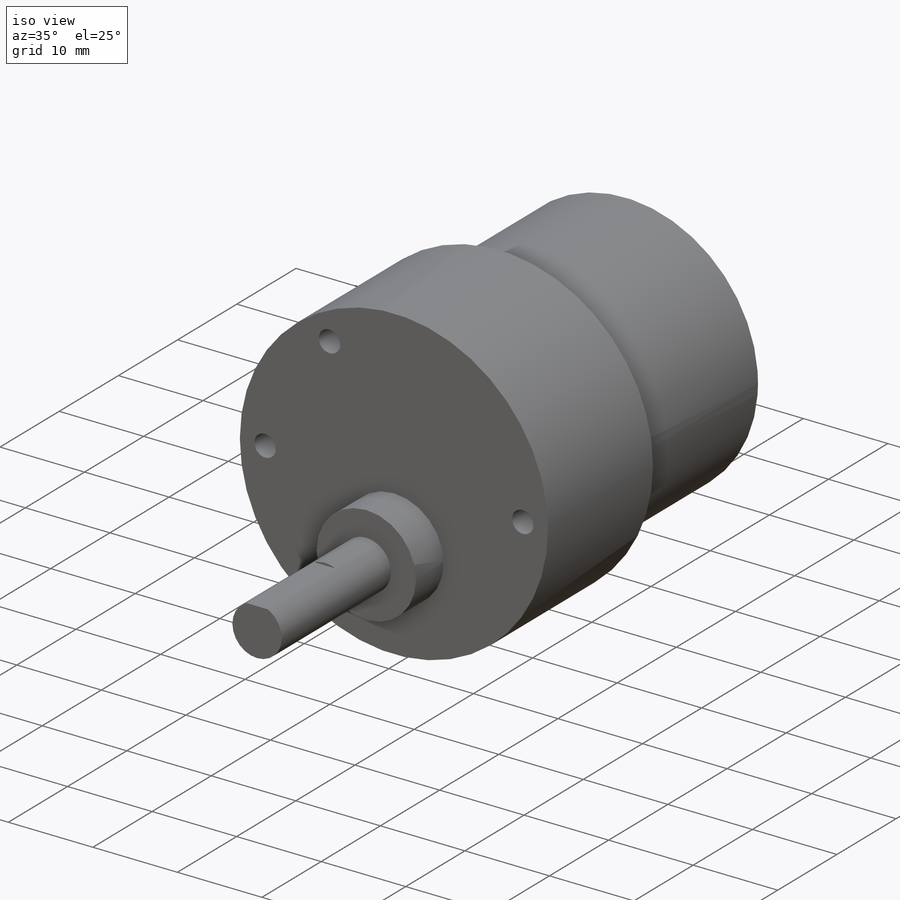
[diagram: iso view]
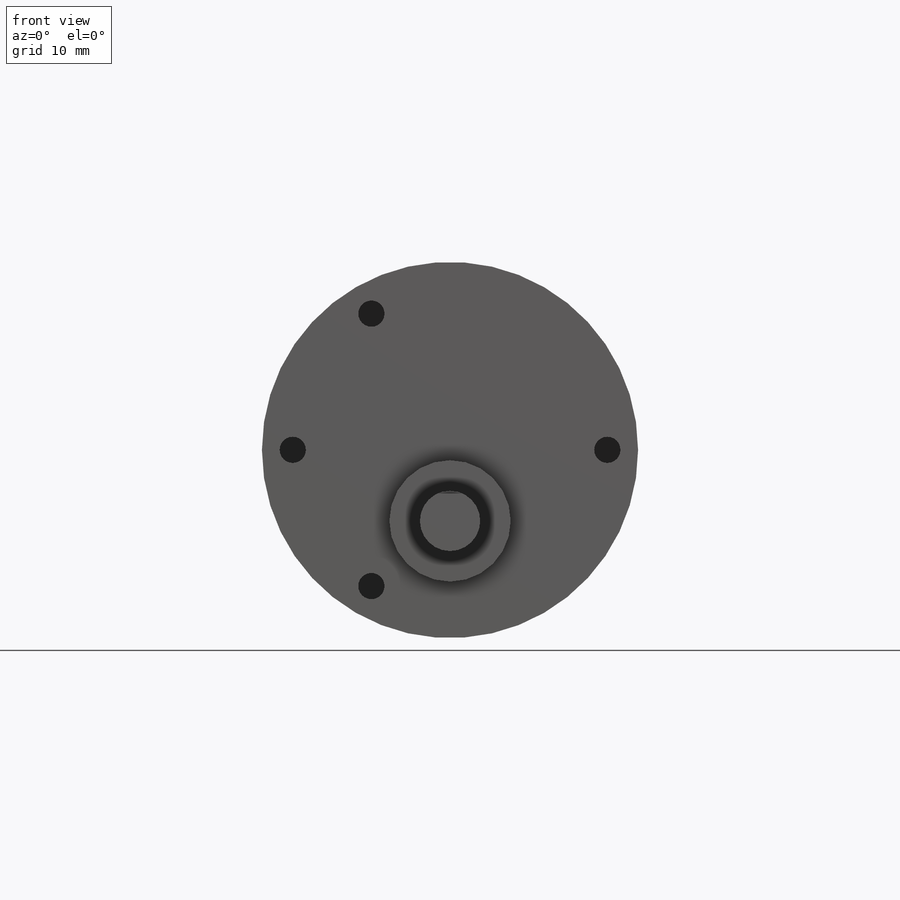
[diagram: front view]
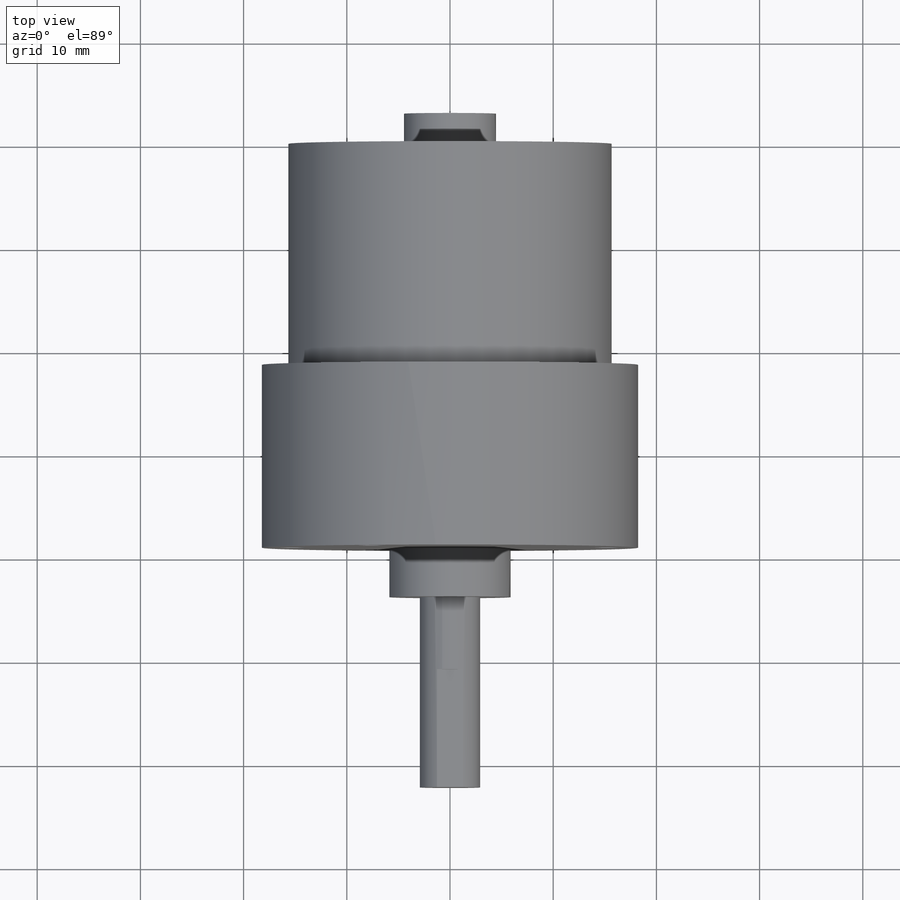
[diagram: top view]
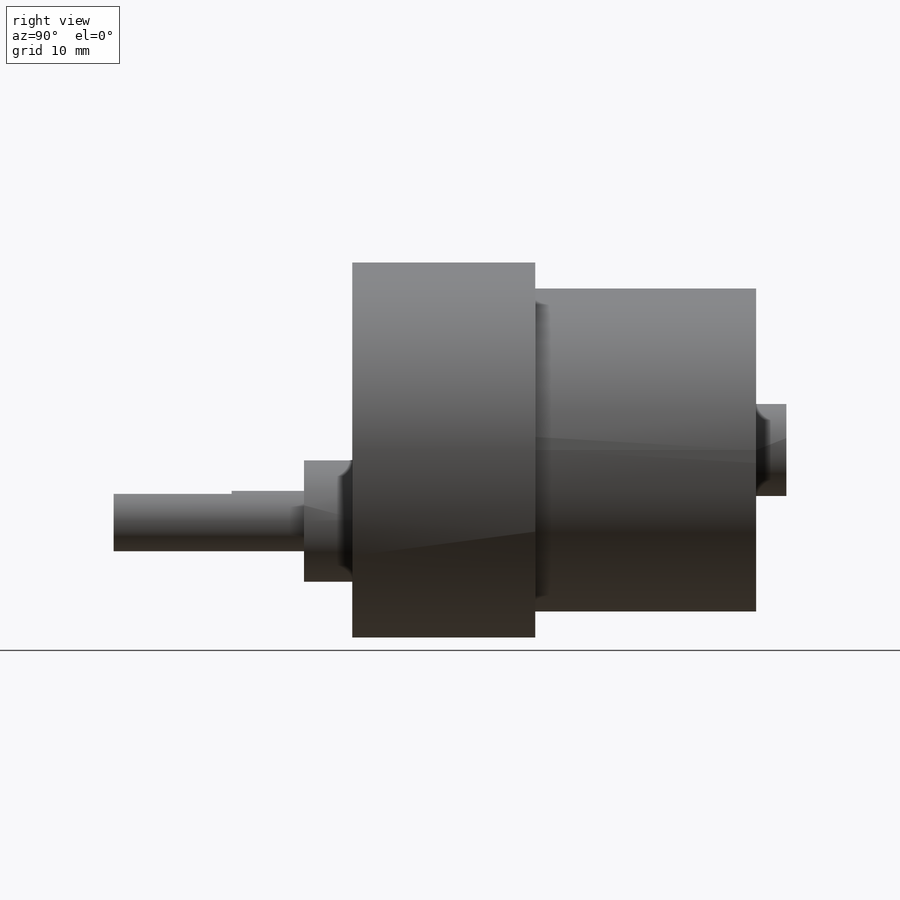
[diagram: right view]
SOLIDWORKS PART (.sldprt)
format: sldprt  version: not decoded by parser v0  size: 209,920 bytes
history: native  units: mm
features: sketch x7, extrude x5, cut_extrude x2, material x1 (+14 scaffold rows collapsed)
feature tree (29):
  scaffold x14  (default folders/planes/origin — collapsed)
  material  "Material <not specified>"
  sketch  "Sketch1"  dims[D1=31.3182mm]
  extrude  "motor"  Depth=21.4122mm
  sketch  "Sketch3"  dims[D1=36.449mm]
  extrude  "gearbox"  Depth=17.7292mm
  sketch  "Sketch4"  dims[D2=11.7602mm D1=30.988mm]
  extrude  "protrusion"  Depth=4.6736mm
  sketch  "Sketch5"  dims[D1=5.842mm]
  extrude  "shaft"  Depth=18.4404mm
  sketch  "Sketch6"  dims[D2=2.54mm D1=27.94mm D3=15.24mm D4=6.8834mm D5=~6.314827mm D6=7.62mm]
  cut_extrude  "screw holes"  Depth=9.3472mm
  sketch  "Sketch7"  dims[D1=8.9154mm]
  extrude  "nub"  Depth=2.921mm
  sketch  "Sketch8"  dims[D2=2.921mm D1=~5.55625mm]
  cut_extrude  "Cut-Extrude1"  Depth=11.43mm
decode coverage: 14 of 14 modeling features carry decoded parameters
note: ~ marks probable driven/reference dimensions
note: suppression state not decoded; provenance and decode notes live in map.json
